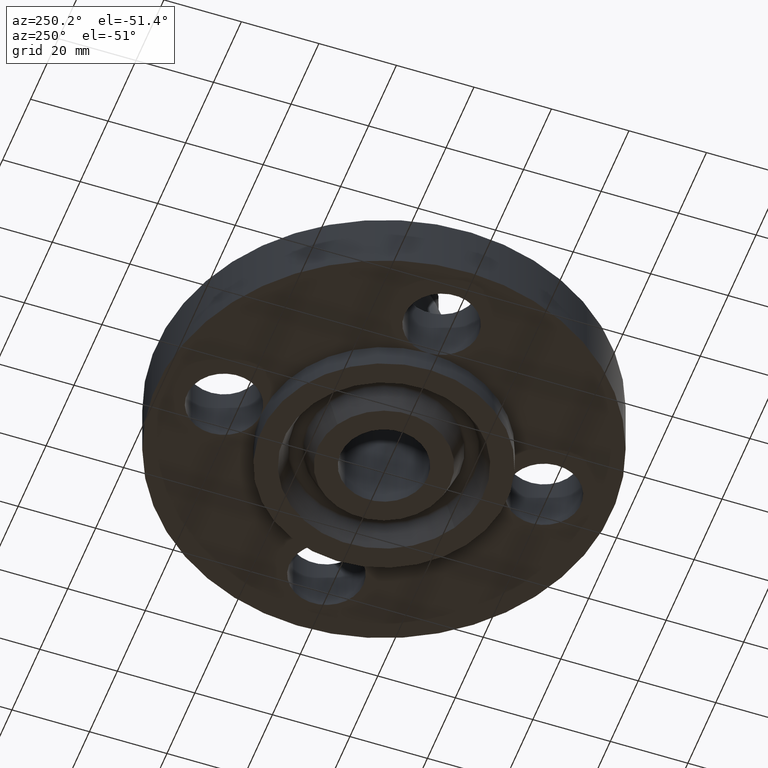
[diagram: clean part render]
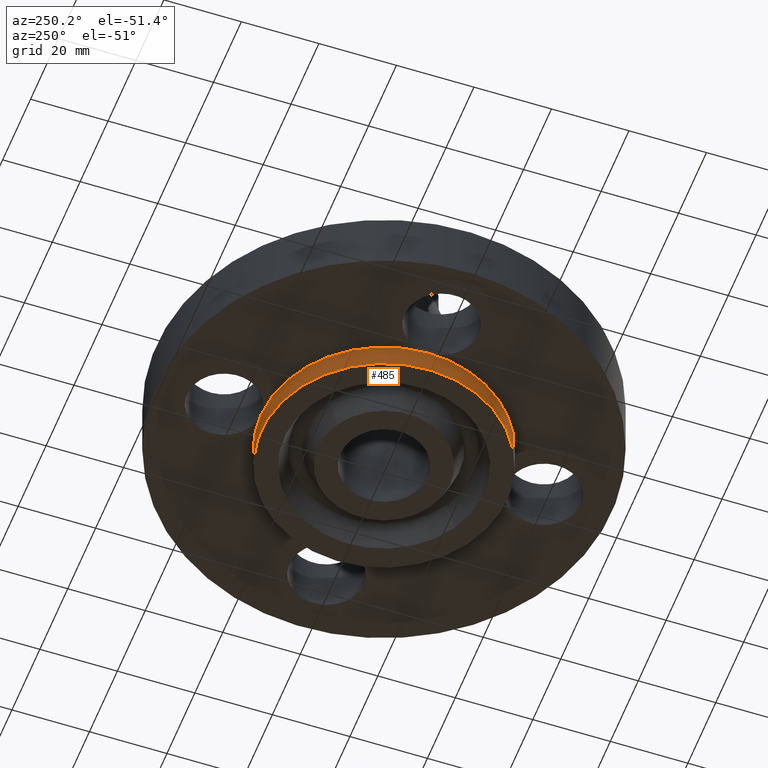
[diagram: same view with one face highlighted and labeled with its STEP entity id]
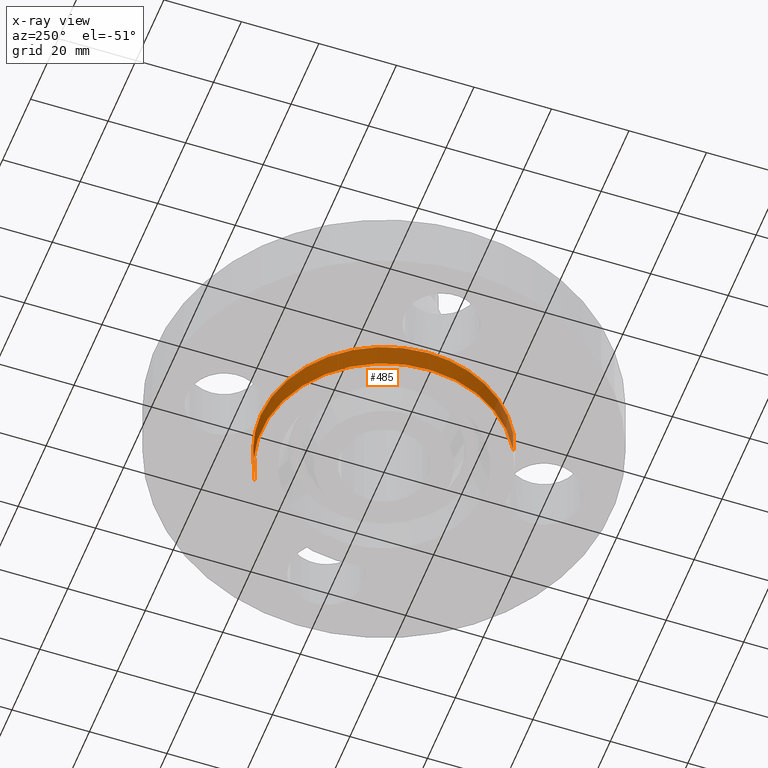
[diagram: x-ray of the same camera — body ghosted, the highlighted face saturated]
A machine part, auxiliary view. The second image highlights one B-rep face of the part: STEP entity #485.
The next image is the same camera in x-ray: the body ghosted, the highlighted face saturated — about 0% of this face is hidden behind the body in this view.
In plain terms, the highlighted cylindrical surface (partial cylindrical patch) has radius 31.75 mm, axis along (0, 0, -1).
Its self-contained STEP definition (entity closure, byte-faithful):
#435=AXIS2_PLACEMENT_3D('Cylinder Axis2P3D',#432,#433,#434) ;
#439=AXIS2_PLACEMENT_3D('Circle Axis2P3D',#437,#438,$) ;
#455=AXIS2_PLACEMENT_3D('Circle Axis2P3D',#453,#454,$) ;
#462=AXIS2_PLACEMENT_3D('Circle Axis2P3D',#460,#461,$) ;
#467=AXIS2_PLACEMENT_3D('Circle Axis2P3D',#465,#466,$) ;
#79=CARTESIAN_POINT('Vertex',(3.90510912389E-015,1.25000000001,1.39870617276E-016)) ;
#432=CARTESIAN_POINT('Axis2P3D Location',(0.,0.,1.)) ;
#437=CARTESIAN_POINT('Axis2P3D Location',(0.,0.,-0.250000000001)) ;
#441=CARTESIAN_POINT('Vertex',(-0.599281923258,-1.09697820237,-0.250000000001)) ;
#443=CARTESIAN_POINT('Vertex',(0.599281923258,1.09697820237,-0.250000000001)) ;
#446=CARTESIAN_POINT('Line Origine',(-0.599281923258,-1.09697820237,-0.125)) ;
#450=CARTESIAN_POINT('Vertex',(-0.599281923258,-1.09697820237,1.39870617276E-016)) ;
#453=CARTESIAN_POINT('Axis2P3D Location',(0.,0.,1.39870617276E-016)) ;
#457=CARTESIAN_POINT('Vertex',(-1.25000000001,-1.39870617276E-016,0.)) ;
#460=CARTESIAN_POINT('Axis2P3D Location',(0.,0.,1.39870617276E-016)) ;
#465=CARTESIAN_POINT('Axis2P3D Location',(0.,0.,1.39870617276E-016)) ;
#469=CARTESIAN_POINT('Vertex',(0.599281923258,1.09697820237,1.39870617276E-016)) ;
#472=CARTESIAN_POINT('Line Origine',(0.599281923258,1.09697820237,-0.125)) ;
#433=DIRECTION('Axis2P3D Direction',(0.,0.,-0.0393700787402)) ;
#434=DIRECTION('Axis2P3D XDirection',(0.0188750212049,0.0345504945626,0.)) ;
#438=DIRECTION('Axis2P3D Direction',(0.,0.,-0.0393700787402)) ;
#447=DIRECTION('Vector Direction',(0.,0.,-0.0393700787402)) ;
#454=DIRECTION('Axis2P3D Direction',(0.,0.,-0.0393700787402)) ;
#461=DIRECTION('Axis2P3D Direction',(0.,0.,-0.0393700787402)) ;
#466=DIRECTION('Axis2P3D Direction',(0.,0.,-0.0393700787402)) ;
#473=DIRECTION('Vector Direction',(0.,0.,-0.0393700787402)) ;
#448=VECTOR('Line Direction',#447,0.0393700787402) ;
#474=VECTOR('Line Direction',#473,0.0393700787402) ;
#478=ORIENTED_EDGE('',*,*,#445,.F.) ;
#479=ORIENTED_EDGE('',*,*,#452,.T.) ;
#480=ORIENTED_EDGE('',*,*,#459,.T.) ;
#481=ORIENTED_EDGE('',*,*,#464,.T.) ;
#482=ORIENTED_EDGE('',*,*,#471,.T.) ;
#483=ORIENTED_EDGE('',*,*,#476,.F.) ;
#485=ADVANCED_FACE('PartBody',(#484),#436,.T.) ;
#440=CIRCLE('generated circle',#439,1.25000000001) ;
#456=CIRCLE('generated circle',#455,1.25000000001) ;
#463=CIRCLE('generated circle',#462,1.25000000001) ;
#468=CIRCLE('generated circle',#467,1.25000000001) ;
#436=CYLINDRICAL_SURFACE('generated cylinder',#435,1.25000000001) ;
#445=EDGE_CURVE('',#442,#444,#440,.T.) ;
#452=EDGE_CURVE('',#442,#451,#449,.F.) ;
#459=EDGE_CURVE('',#451,#458,#456,.T.) ;
#464=EDGE_CURVE('',#458,#80,#463,.T.) ;
#471=EDGE_CURVE('',#80,#470,#468,.T.) ;
#476=EDGE_CURVE('',#444,#470,#475,.F.) ;
#477=EDGE_LOOP('',(#478,#479,#480,#481,#482,#483)) ;
#484=FACE_OUTER_BOUND('',#477,.T.) ;
#449=LINE('Line',#446,#448) ;
#475=LINE('Line',#472,#474) ;
#80=VERTEX_POINT('',#79) ;
#442=VERTEX_POINT('',#441) ;
#444=VERTEX_POINT('',#443) ;
#451=VERTEX_POINT('',#450) ;
#458=VERTEX_POINT('',#457) ;
#470=VERTEX_POINT('',#469) ;